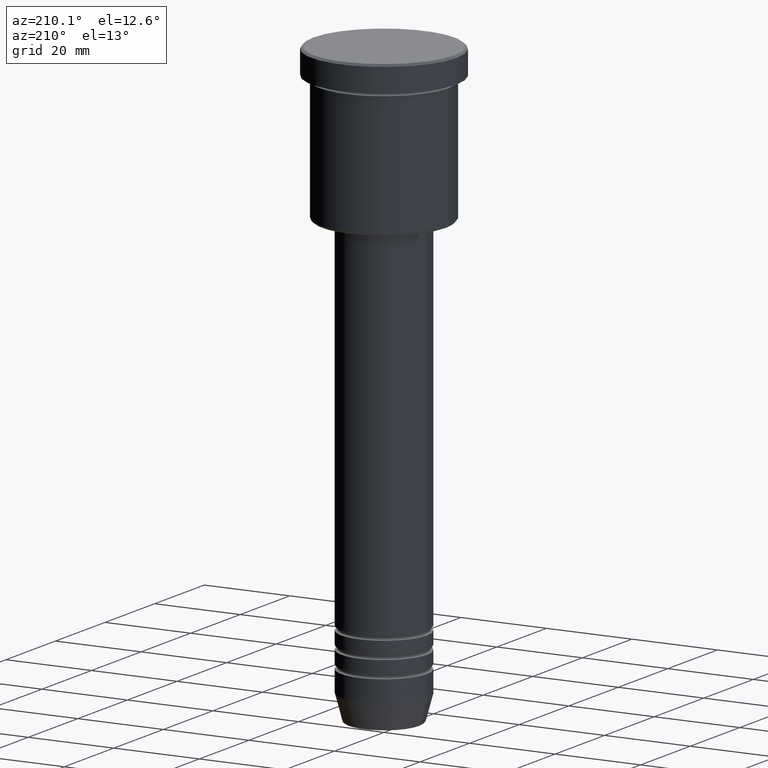
[diagram: clean part render]
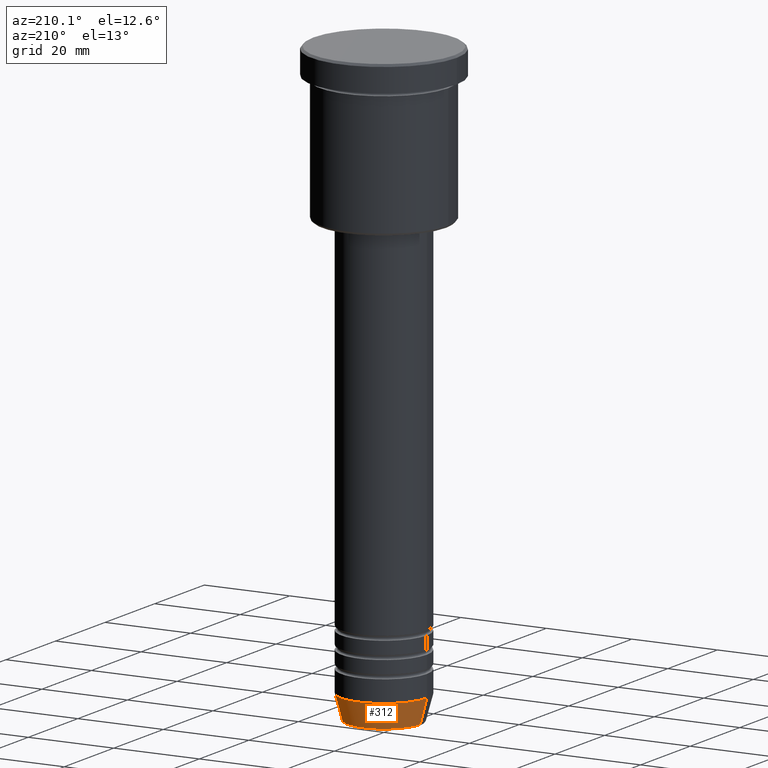
[diagram: same view with one face highlighted and labeled with its STEP entity id]
A machine part, auxiliary view. The second image highlights one B-rep face of the part: STEP entity #312.
In plain terms, the highlighted conical surface has half-angle 15 deg.
Its self-contained STEP definition (entity closure, byte-faithful):
#3 = VECTOR ( 'NONE', #776, 1000.000000000000000 ) ;
#21 = EDGE_CURVE ( 'NONE', #1173, #941, #80, .T. ) ;
#54 = CARTESIAN_POINT ( 'NONE',  ( 0.000000000000000000, 0.000000000000000000, -134.0000000000000000 ) ) ;
#63 = CONICAL_SURFACE ( 'NONE', #681, 10.00000000000000178, 0.2617993877991501295 ) ;
#80 = CIRCLE ( 'NONE', #952, 8.491604264568316296 ) ;
#90 = CARTESIAN_POINT ( 'NONE',  ( -10.00000000000000178, 1.224646799147353454E-15, -134.0000000000000000 ) ) ;
#119 = CARTESIAN_POINT ( 'NONE',  ( -10.00000000000000178, 1.224646799147353454E-15, -134.0000000000000000 ) ) ;
#120 = CARTESIAN_POINT ( 'NONE',  ( 8.491604264568316296, 0.000000000000000000, -139.6294095225512706 ) ) ;
#146 = CIRCLE ( 'NONE', #400, 10.00000000000000178 ) ;
#179 = CARTESIAN_POINT ( 'NONE',  ( 10.00000000000000178, 0.000000000000000000, -134.0000000000000000 ) ) ;
#220 = DIRECTION ( 'NONE',  ( 1.000000000000000000, 0.000000000000000000, 0.000000000000000000 ) ) ;
#230 = CARTESIAN_POINT ( 'NONE',  ( 10.00000000000000178, 0.000000000000000000, -134.0000000000000000 ) ) ;
#243 = DIRECTION ( 'NONE',  ( 1.000000000000000000, 0.000000000000000000, 0.000000000000000000 ) ) ;
#246 = EDGE_CURVE ( 'NONE', #1173, #673, #988, .T. ) ;
#312 = ADVANCED_FACE ( 'NONE', ( #1013 ), #63, .T. ) ;
#328 = EDGE_CURVE ( 'NONE', #941, #1131, #606, .T. ) ;
#400 = AXIS2_PLACEMENT_3D ( 'NONE', #54, #683, #1034 ) ;
#457 = ORIENTED_EDGE ( 'NONE', *, *, #690, .F. ) ;
#482 = CARTESIAN_POINT ( 'NONE',  ( 0.000000000000000000, 0.000000000000000000, -134.0000000000000000 ) ) ;
#584 = ORIENTED_EDGE ( 'NONE', *, *, #246, .F. ) ;
#606 = LINE ( 'NONE', #119, #3 ) ;
#654 = ORIENTED_EDGE ( 'NONE', *, *, #21, .T. ) ;
#658 = ORIENTED_EDGE ( 'NONE', *, *, #328, .T. ) ;
#673 = VERTEX_POINT ( 'NONE', #230 ) ;
#681 = AXIS2_PLACEMENT_3D ( 'NONE', #482, #933, #220 ) ;
#683 = DIRECTION ( 'NONE',  ( -0.000000000000000000, -0.000000000000000000, 1.000000000000000000 ) ) ;
#690 = EDGE_CURVE ( 'NONE', #673, #1131, #146, .T. ) ;
#776 = DIRECTION ( 'NONE',  ( -0.2588190451025214056, 3.169619151431772953E-17, 0.9659258262890680902 ) ) ;
#929 = CARTESIAN_POINT ( 'NONE',  ( -8.491604264568316296, 1.132284198685156781E-15, -139.6294095225512706 ) ) ;
#933 = DIRECTION ( 'NONE',  ( -0.000000000000000000, -0.000000000000000000, 1.000000000000000000 ) ) ;
#941 = VERTEX_POINT ( 'NONE', #929 ) ;
#942 = EDGE_LOOP ( 'NONE', ( #654, #658, #457, #584 ) ) ;
#948 = CARTESIAN_POINT ( 'NONE',  ( 0.000000000000000000, 0.000000000000000000, -139.6294095225512706 ) ) ;
#952 = AXIS2_PLACEMENT_3D ( 'NONE', #948, #1159, #243 ) ;
#988 = LINE ( 'NONE', #179, #1170 ) ;
#1004 = DIRECTION ( 'NONE',  ( 0.2588190451025214056, 0.000000000000000000, 0.9659258262890680902 ) ) ;
#1013 = FACE_OUTER_BOUND ( 'NONE', #942, .T. ) ;
#1034 = DIRECTION ( 'NONE',  ( 1.000000000000000000, 0.000000000000000000, 0.000000000000000000 ) ) ;
#1131 = VERTEX_POINT ( 'NONE', #90 ) ;
#1159 = DIRECTION ( 'NONE',  ( -0.000000000000000000, -0.000000000000000000, 1.000000000000000000 ) ) ;
#1170 = VECTOR ( 'NONE', #1004, 1000.000000000000000 ) ;
#1173 = VERTEX_POINT ( 'NONE', #120 ) ;